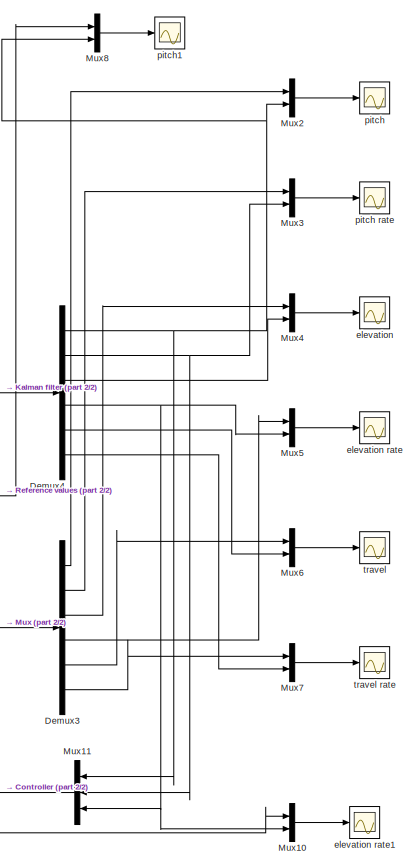
[diagram: root canvas - part 1/2, right side, full height]
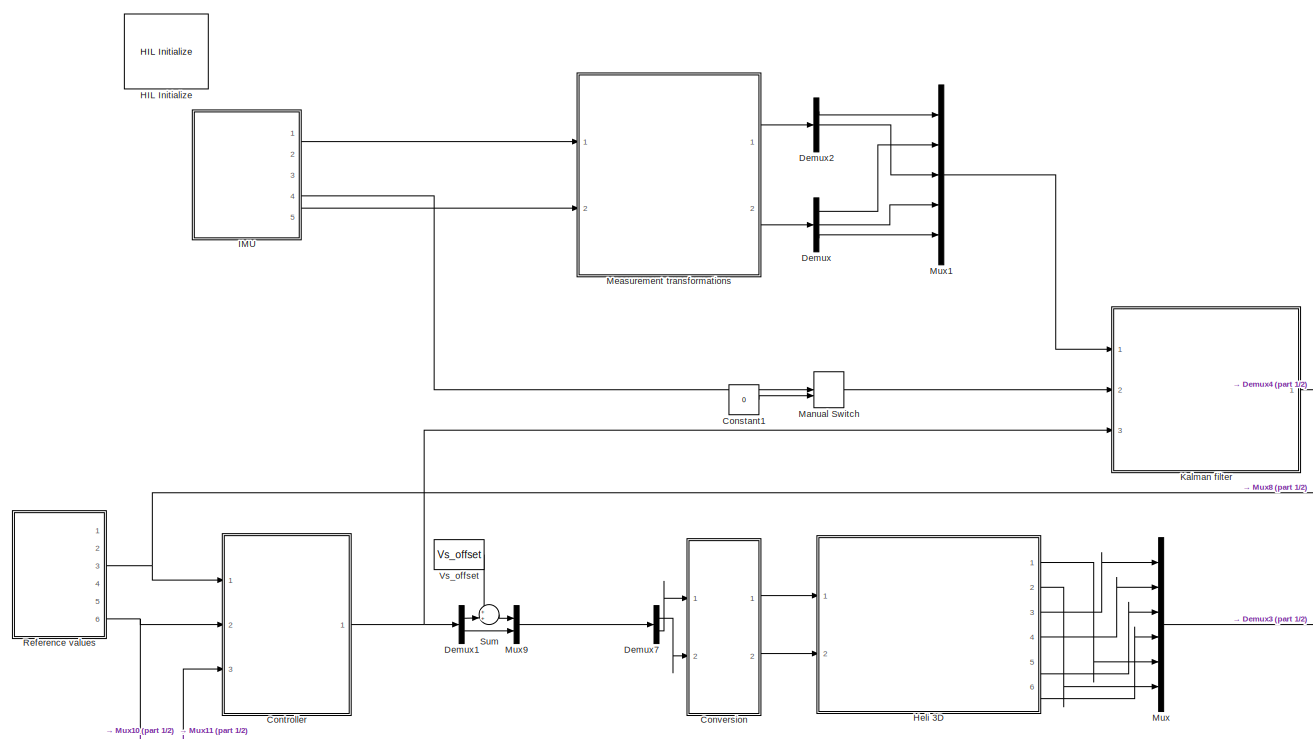
[diagram: root canvas - part 2/2, most of the canvas]
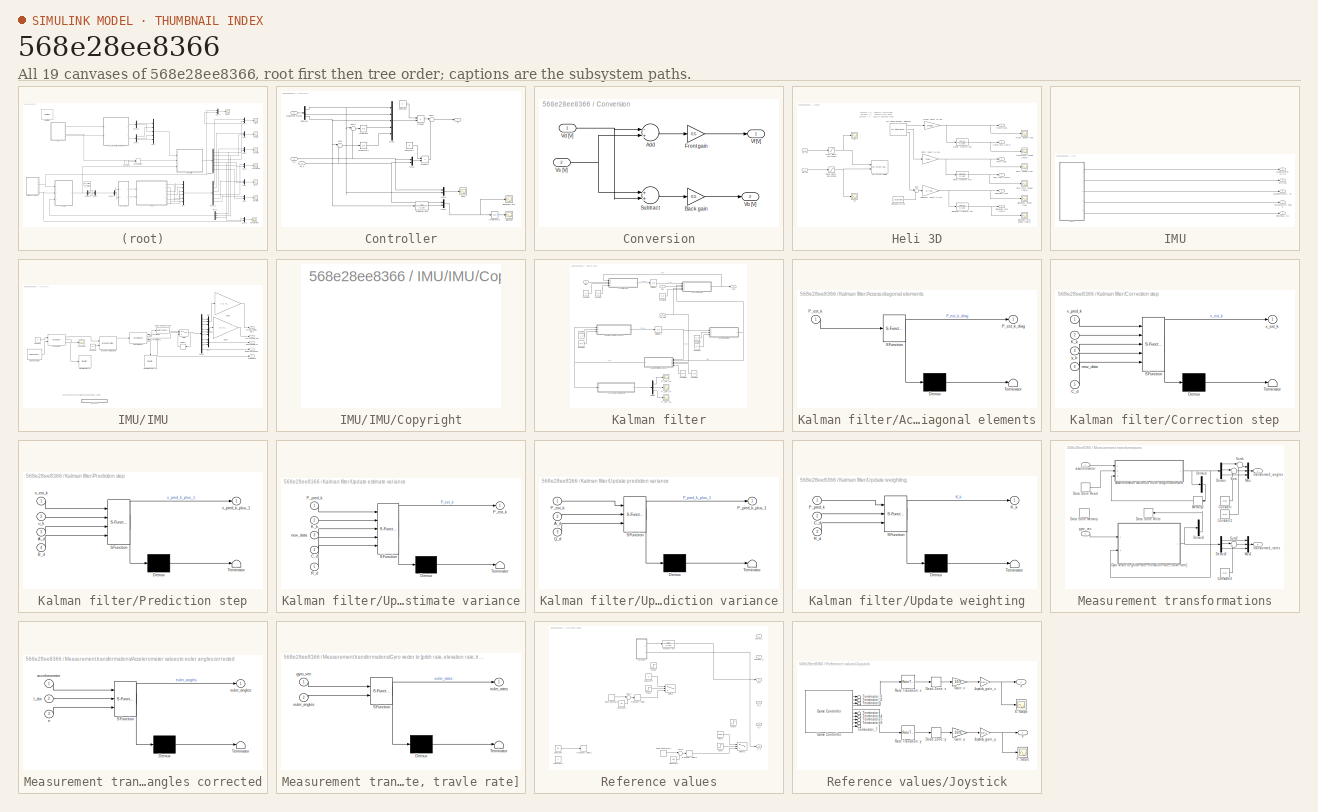
[diagram: thumbnail index - all 19 canvases of the model, root first then tree order]
MODEL slx_568e28ee8366
KIND model
CONFIG AbsTol = auto
CONFIG FixedStep = 0.002
CONFIG MaxStep = auto
CONFIG MinStep = auto
CONFIG PostLoadFcn = qc_set_target_type(getConfigSet(bdroot, 'QUARC Default Target Configuration'));
CONFIG RelTol = 1e-3
CONFIG SampleTimeConstraint = Unconstrained
CONFIG Solver = ode1
CONFIG SolverMode = Auto
CONFIG SolverName = ode1
CONFIG StartTime = 0.0
CONFIG StopTime = inf
BLOCK [Constant] Constant1
  Value = 0
BLOCK [SubSystem] Controller
  Ports = [3, 1]
  RequestExecContextInheritance = off
  Variant = off
BLOCK [Constant] Controller/Constant
  Value = K
BLOCK [Constant] Controller/Constant1
  Value = F
BLOCK [Demux] Controller/Demux1
  DisplayOption = bar
  Outputs = 3
  Ports = [1, 3]
BLOCK [Scope] Controller/Elevation
  Ports = [1]
  ScopeSpecificationString = Simulink.scopes.TimeScopeBlockCfg('CurrentConfiguration', extmgr.ConfigurationSet(extmgr.Configuration('Core','General UI',true),extmgr.Configuration('Core','Source UI',true),extmgr.Configuration('Sources','WiredSimulink',true,'DataLoggingVariableName','ScopeData2'),extmgr.Configuration('Visuals','Time Domain',true,'SerializedDisplays',{struct('MinYLimReal','-0.04275','MaxYLimReal','0.19496','YLab...<+1488ch>
BLOCK [Scope] Controller/Elevation rate
  Ports = [1]
  ScopeSpecificationString = Simulink.scopes.TimeScopeBlockCfg('CurrentConfiguration', extmgr.ConfigurationSet(extmgr.Configuration('Core','General UI',true),extmgr.Configuration('Core','Source UI',true),extmgr.Configuration('Sources','WiredSimulink',true,'DataLoggingVariableName','ScopeData1'),extmgr.Configuration('Visuals','Time Domain',true,'SerializedDisplays',{struct('MinYLimReal','-0.60029','MaxYLimReal','0.90314','YLab...<+1450ch>
BLOCK [Integrator] Controller/Integrator
  Ports = [1, 1]
BLOCK [Integrator] Controller/Integrator1
  Ports = [1, 1]
BLOCK [Integrator] Controller/Integrator2
  Ports = [1, 1]
BLOCK [Inport] Controller/Measured states
  IconDisplay = Port number
  Port = 3
BLOCK [Mux] Controller/Mux1
  DisplayOption = bar
  Inputs = 2
  Ports = [2, 1]
BLOCK [Mux] Controller/Mux2
  DisplayOption = bar
  Inputs = 5
  Ports = [5, 1]
BLOCK [Mux] Controller/Mux3
  DisplayOption = bar
  Inputs = 2
  Ports = [2, 1]
BLOCK [Mux] Controller/Mux4
  DisplayOption = bar
  Inputs = 2
  Ports = [2, 1]
BLOCK [Scope] Controller/Pitch
  Ports = [1]
  ScopeSpecificationString = Simulink.scopes.TimeScopeBlockCfg('CurrentConfiguration', extmgr.ConfigurationSet(extmgr.Configuration('Core','General UI',true),extmgr.Configuration('Core','Source UI',true),extmgr.Configuration('Sources','WiredSimulink',true,'DataLoggingVariableName','ScopeData1'),extmgr.Configuration('Visuals','Time Domain',true,'SerializedDisplays',{struct('MinYLimReal','-0.05269','MaxYLimReal','0.05852','YLab...<+1474ch>
BLOCK [Product] Controller/Product
  InputSameDT = off
  Multiplication = Matrix(*)
  OutDataTypeStr = Inherit: Inherit via internal rule
  Ports = [2, 1]
  RndMeth = Floor
  SaturateOnIntegerOverflow = off
BLOCK [Product] Controller/Product1
  InputSameDT = off
  Multiplication = Matrix(*)
  OutDataTypeStr = Inherit: Inherit via internal rule
  Ports = [2, 1]
  RndMeth = Floor
  SaturateOnIntegerOverflow = off
BLOCK [Sum] Controller/Sum
  IconShape = round
  InputSameDT = off
  Inputs = |+-
  OutDataTypeStr = Inherit: Inherit via internal rule
  Ports = [2, 1]
  SaturateOnIntegerOverflow = off
BLOCK [Sum] Controller/Sum1
  IconShape = round
  InputSameDT = off
  Inputs = |-+
  OutDataTypeStr = Inherit: Inherit via internal rule
  Ports = [2, 1]
  SaturateOnIntegerOverflow = off
BLOCK [Sum] Controller/Sum2
  IconShape = round
  InputSameDT = off
  Inputs = |+-
  OutDataTypeStr = Inherit: Inherit via internal rule
  Ports = [2, 1]
  SaturateOnIntegerOverflow = off
BLOCK [TransferFcn] Controller/Transfer Fcn
  Denominator = [1 10]
  Numerator = [10]
BLOCK [Inport] Controller/e*_c
  IconDisplay = Port number
  Port = 2
BLOCK [Inport] Controller/p_c
  IconDisplay = Port number
BLOCK [Outport] Controller/u
  IconDisplay = Port number
BLOCK [SubSystem] Conversion
  Ports = [2, 2]
  RequestExecContextInheritance = off
  Variant = off
BLOCK [Sum] Conversion/Add
  InputSameDT = off
  Inputs = -+
  OutDataTypeStr = Inherit: Inherit via internal rule
  Ports = [2, 1]
  SaturateOnIntegerOverflow = off
BLOCK [Gain] Conversion/Back gain
  Gain = 0.5
  OutDataTypeStr = Inherit: Inherit via internal rule
  ParamDataTypeStr = Inherit: Inherit via internal rule
  SaturateOnIntegerOverflow = off
BLOCK [Gain] Conversion/Front gain
  Gain = 0.5
  OutDataTypeStr = Inherit: Inherit via internal rule
  ParamDataTypeStr = Inherit: Inherit via internal rule
  SaturateOnIntegerOverflow = off
BLOCK [Sum] Conversion/Subtract
  InputSameDT = off
  OutDataTypeStr = Inherit: Inherit via internal rule
  Ports = [2, 1]
  SaturateOnIntegerOverflow = off
BLOCK [Outport] Conversion/Vb [V]
  IconDisplay = Port number
  Port = 2
BLOCK [Inport] Conversion/Vd [V]
  IconDisplay = Port number
BLOCK [Outport] Conversion/Vf [V]
  IconDisplay = Port number
BLOCK [Inport] Conversion/Vs [V]
  IconDisplay = Port number
  Port = 2
BLOCK [Demux] Demux
  DisplayOption = bar
  Outputs = 3
  Ports = [1, 3]
BLOCK [Demux] Demux1
  DisplayOption = bar
  Outputs = 2
  Ports = [1, 2]
BLOCK [Demux] Demux2
  DisplayOption = bar
  Outputs = 3
  Ports = [1, 3]
BLOCK [Demux] Demux3
  DisplayOption = bar
  Outputs = 6
  Ports = [1, 6]
BLOCK [Demux] Demux4
  DisplayOption = bar
  Outputs = 6
  Ports = [1, 6]
BLOCK [Demux] Demux7
  DisplayOption = bar
  Outputs = 2
  Ports = [1, 2]
BLOCK [Reference] HIL Initialize  REF=quarc_library/Data Acquisition/Generic/Configuration/HIL Initialize
  AttributesFormatString = %<object_name> (%<board_type>-%<board_number>)
  Ports = []
  Priority = -99
  SourceBlock = quarc_library/Data Acquisition/Generic/Configuration/HIL Initialize
  SourceType = HIL Initialize
  UserDataPersistent = on
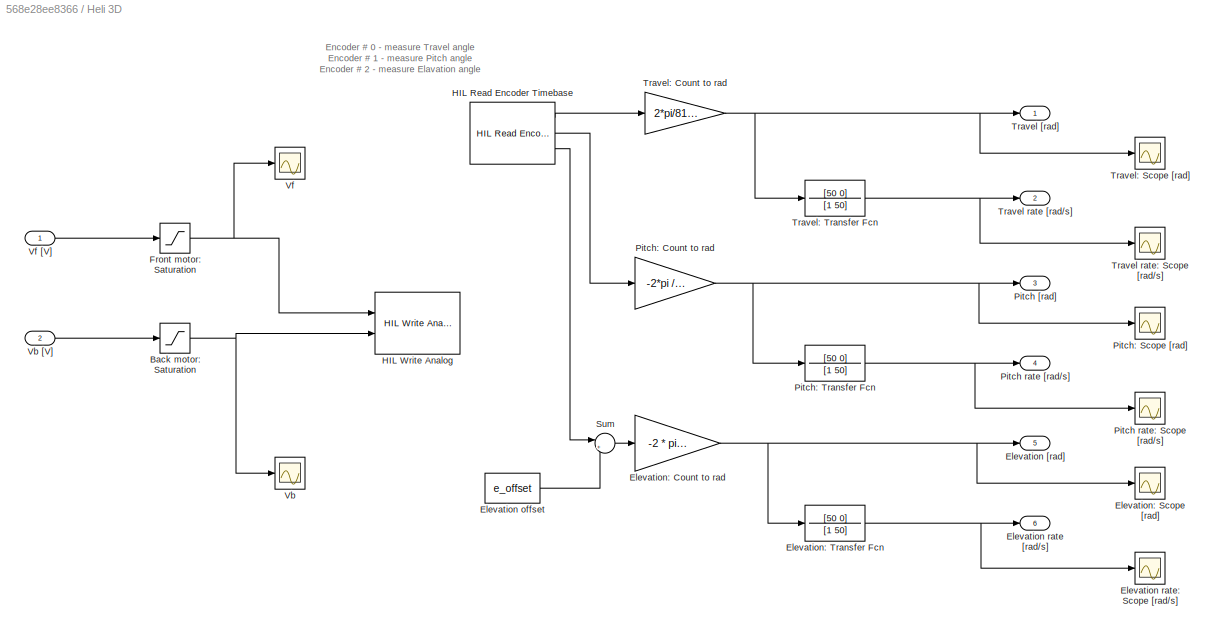
BLOCK [SubSystem] Heli 3D
  Ports = [2, 6]
  RequestExecContextInheritance = off
  Variant = off
BLOCK [Saturate] Heli 3D/Back motor: Saturation
  InputPortMap = u0
  LowerLimit = -5
  Ports = [1, 1]
  UpperLimit = 5
BLOCK [Outport] Heli 3D/Elevation [rad]
  IconDisplay = Port number
  Port = 5
BLOCK [Constant] Heli 3D/Elevation offset
  Value = e_offset
BLOCK [Outport] Heli 3D/Elevation rate [rad//s]
  IconDisplay = Port number
  Port = 6
BLOCK [Scope] Heli 3D/Elevation rate: Scope [rad//s]
  Ports = [1]
  ScopeSpecificationString = Simulink.scopes.TimeScopeBlockCfg('CurrentConfiguration', extmgr.ConfigurationSet(extmgr.Configuration('Core','General UI',true),extmgr.Configuration('Core','Source UI',true),extmgr.Configuration('Sources','WiredSimulink',true,'DataLoggingVariableName','ScopeData13','DataLoggingSaveFormat','StructureWithTime','DataLoggingLimitDataPoints',true,'DataLoggingDecimation','1','DataLoggingDecimateData',t...<+1740ch>
BLOCK [Gain] Heli 3D/Elevation: Count to rad
  Gain = -2 * pi /4096
  OutDataTypeStr = Inherit: Inherit via internal rule
  ParamDataTypeStr = Inherit: Inherit via internal rule
  SaturateOnIntegerOverflow = off
BLOCK [Scope] Heli 3D/Elevation: Scope [rad]
  Ports = [1]
  ScopeSpecificationString = Simulink.scopes.TimeScopeBlockCfg('CurrentConfiguration', extmgr.ConfigurationSet(extmgr.Configuration('Core','General UI',true),extmgr.Configuration('Core','Source UI',true),extmgr.Configuration('Sources','WiredSimulink',true,'DataLoggingVariableName','ScopeData12','DataLoggingSaveFormat','StructureWithTime','DataLoggingLimitDataPoints',true,'DataLoggingDecimation','1','DataLoggingDecimateData',t...<+1766ch>
BLOCK [TransferFcn] Heli 3D/Elevation: Transfer Fcn
  Denominator = [1 50]
  Numerator = [50 0]
BLOCK [Saturate] Heli 3D/Front motor: Saturation
  InputPortMap = u0
  LowerLimit = -5
  Ports = [1, 1]
  UpperLimit = 5
BLOCK [Reference] Heli 3D/HIL Read Encoder Timebase  REF=quarc_library/Data Acquisition/Generic/Timebases/HIL Read Encoder
Timebase
  AttributesFormatString = (%<object_name>)
  Ports = [0, 3]
  SourceBlock = quarc_library/Data Acquisition/Generic/Timebases/HIL Read Encoder\nTimebase
  SourceType = HIL Read Encoder Timebase
  UserDataPersistent = on
BLOCK [Reference] Heli 3D/HIL Write Analog  REF=quarc_library/Data Acquisition/Generic/Immediate I//O/HIL Write Analog
  AttributesFormatString = (%<object_name>)
  Ports = [2]
  SourceBlock = quarc_library/Data Acquisition/Generic/Immediate I//O/HIL Write Analog
  SourceType = HIL Write Analog
  UserDataPersistent = on
BLOCK [Outport] Heli 3D/Pitch [rad]
  IconDisplay = Port number
  Port = 3
BLOCK [Outport] Heli 3D/Pitch rate [rad//s]
  IconDisplay = Port number
  Port = 4
BLOCK [Scope] Heli 3D/Pitch rate: Scope [rad//s]
  Ports = [1]
  ScopeSpecificationString = Simulink.scopes.TimeScopeBlockCfg('CurrentConfiguration', extmgr.ConfigurationSet(extmgr.Configuration('Core','General UI',true),extmgr.Configuration('Core','Source UI',true),extmgr.Configuration('Sources','WiredSimulink',true,'DataLoggingVariableName','ScopeData11','DataLoggingSaveFormat','StructureWithTime','DataLoggingLimitDataPoints',true,'DataLoggingDecimation','1','DataLoggingDecimateData',t...<+1672ch>
BLOCK [Gain] Heli 3D/Pitch: Count to rad
  Gain = -2*pi /4096
  OutDataTypeStr = Inherit: Inherit via internal rule
  ParamDataTypeStr = Inherit: Inherit via internal rule
  SaturateOnIntegerOverflow = off
BLOCK [Scope] Heli 3D/Pitch: Scope [rad]
  Ports = [1]
  ScopeSpecificationString = Simulink.scopes.TimeScopeBlockCfg('CurrentConfiguration', extmgr.ConfigurationSet(extmgr.Configuration('Core','General UI',true),extmgr.Configuration('Core','Source UI',true),extmgr.Configuration('Sources','WiredSimulink',true,'DataLoggingVariableName','ScopeData10','DataLoggingSaveFormat','StructureWithTime','DataLoggingLimitDataPoints',true,'DataLoggingDecimation','1','DataLoggingDecimateData',t...<+1671ch>
BLOCK [TransferFcn] Heli 3D/Pitch: Transfer Fcn
  Denominator = [1 50]
  Numerator = [50 0]
BLOCK [Sum] Heli 3D/Sum
  IconShape = round
  InputSameDT = off
  Inputs = |+-
  OutDataTypeStr = Inherit: Inherit via internal rule
  Ports = [2, 1]
  SaturateOnIntegerOverflow = off
BLOCK [Outport] Heli 3D/Travel [rad]
  IconDisplay = Port number
BLOCK [Outport] Heli 3D/Travel rate [rad//s]
  IconDisplay = Port number
  Port = 2
BLOCK [Scope] Heli 3D/Travel rate: Scope [rad//s]
  Ports = [1]
  ScopeSpecificationString = Simulink.scopes.TimeScopeBlockCfg('CurrentConfiguration', extmgr.ConfigurationSet(extmgr.Configuration('Core','General UI',true),extmgr.Configuration('Core','Source UI',true),extmgr.Configuration('Sources','WiredSimulink',true,'DataLoggingVariableName','ScopeData9','DataLoggingSaveFormat','StructureWithTime','DataLoggingLimitDataPoints',true,'DataLoggingDecimation','1','DataLoggingDecimateData',tr...<+1652ch>
BLOCK [Gain] Heli 3D/Travel: Count to rad
  Gain = 2*pi/8192
  OutDataTypeStr = Inherit: Inherit via internal rule
  ParamDataTypeStr = Inherit: Inherit via internal rule
  SaturateOnIntegerOverflow = off
BLOCK [Scope] Heli 3D/Travel: Scope [rad]
  Ports = [1]
  ScopeSpecificationString = Simulink.scopes.TimeScopeBlockCfg('CurrentConfiguration', extmgr.ConfigurationSet(extmgr.Configuration('Core','General UI',true),extmgr.Configuration('Core','Source UI',true),extmgr.Configuration('Sources','WiredSimulink',true,'DataLoggingVariableName','ScopeData8','DataLoggingSaveFormat','StructureWithTime','DataLoggingLimitDataPoints',true,'DataLoggingDecimation','1','DataLoggingDecimateData',tr...<+1672ch>
BLOCK [TransferFcn] Heli 3D/Travel: Transfer Fcn
  Denominator = [1 50]
  Numerator = [50 0]
BLOCK [Scope] Heli 3D/Vb
  Ports = [1]
  ScopeSpecificationString = Simulink.scopes.TimeScopeBlockCfg('CurrentConfiguration', extmgr.ConfigurationSet(extmgr.Configuration('Core','General UI',true),extmgr.Configuration('Core','Source UI',true),extmgr.Configuration('Sources','WiredSimulink',true,'DataLoggingVariableName','ScopeData2'),extmgr.Configuration('Visuals','Time Domain',true,'SerializedDisplays',{struct('MinYLimReal','3.82927','MaxYLimReal','4.07927','YLabe...<+1456ch>
BLOCK [Inport] Heli 3D/Vb [V]
  IconDisplay = Port number
  Port = 2
BLOCK [Scope] Heli 3D/Vf
  Ports = [1]
  ScopeSpecificationString = Simulink.scopes.TimeScopeBlockCfg('CurrentConfiguration', extmgr.ConfigurationSet(extmgr.Configuration('Core','General UI',true),extmgr.Configuration('Core','Source UI',true),extmgr.Configuration('Sources','WiredSimulink',true,'DataLoggingVariableName','ScopeData1'),extmgr.Configuration('Visuals','Time Domain',true,'SerializedDisplays',{struct('MinYLimReal','-0.625','MaxYLimReal','5.625','YLabelRe...<+1467ch>
BLOCK [Inport] Heli 3D/Vf [V]
  IconDisplay = Port number
BLOCK [SubSystem] IMU
  Ports = [0, 5]
  RequestExecContextInheritance = off
  Variant = off
BLOCK [Outport] IMU/Accelerometer, m//s^2
  IconDisplay = Port number
BLOCK [SubSystem] IMU/IMU
  Ports = [0, 5]
  RequestExecContextInheritance = off
  Variant = off
BLOCK [Scope] IMU/IMU/Connected
  Ports = [1]
  ScopeSpecificationString = Simulink.scopes.TimeScopeBlockCfg('CurrentConfiguration', extmgr.ConfigurationSet(extmgr.Configuration('Core','General UI',true),extmgr.Configuration('Core','Source UI',true),extmgr.Configuration('Sources','WiredSimulink',true,'DataLoggingSaveFormat','StructureWithTime','DataLoggingLimitDataPoints',true,'DataLoggingDecimation','1','DataLoggingDecimateData',true,'DataLoggingVariableName','ScopeData...<+909ch>
BLOCK [Constant] IMU/IMU/Constant
  Value = 0
BLOCK [Constant] IMU/IMU/Constant1
  Value = 65
BLOCK [SubSystem] IMU/IMU/<copyright redacted>
  OpenFcn = web('http://www.quanser.com/');
  Permissions = NoReadOrWrite
  PermitHierarchicalResolution = None
  Ports = []
  RequestExecContextInheritance = off
  Variant = off
BLOCK [DataTypeConversion] IMU/IMU/Data Type Conversion
  OutDataTypeStr = double
  RndMeth = Floor
  SaturateOnIntegerOverflow = off
BLOCK [Demux] IMU/IMU/Demux
  DisplayOption = bar
  Outputs = 10
  Ports = [1, 10]
BLOCK [Gain] IMU/IMU/Gain1
  Gain = [ 0, 0, 1; 0, 1, 0; -1, 0, 0]
  Multiplication = Matrix(K*u) (u vector)
  OutDataTypeStr = Inherit: Inherit via internal rule
  ParamDataTypeStr = Inherit: Inherit via internal rule
  SaturateOnIntegerOverflow = off
BLOCK [Gain] IMU/IMU/Gain2
  Gain = [ 0, 0, 1; 0, 1, 0; -1, 0, 0]
  Multiplication = Matrix(K*u) (u vector)
  OutDataTypeStr = Inherit: Inherit via internal rule
  ParamDataTypeStr = Inherit: Inherit via internal rule
  SaturateOnIntegerOverflow = off
BLOCK [Memory] IMU/IMU/Memory
  X0 = [0 0 0 0 0 0 0 0 0 0]
BLOCK [Mux] IMU/IMU/Mux
  DisplayOption = bar
  Inputs = 3
  Ports = [3, 1]
BLOCK [Mux] IMU/IMU/Mux1
  DisplayOption = bar
  Inputs = 3
  Ports = [3, 1]
BLOCK [Mux] IMU/IMU/Mux2
  DisplayOption = bar
  Inputs = 3
  Ports = [3, 1]
BLOCK [Outport] IMU/IMU/New data, 0//1
  IconDisplay = Port number
  Port = 5
BLOCK [Reference] IMU/IMU/Stop with Call Error  REF=quarc_library/Sinks/Error Handling/Stop with Error
  Ports = [1]
  SourceBlock = quarc_library/Sinks/Error Handling/Stop with Error
  SourceType = Stop with Error
BLOCK [Reference] IMU/IMU/Stop with Read Error  REF=quarc_library/Sinks/Error Handling/Stop with Error
  Ports = [1]
  SourceBlock = quarc_library/Sinks/Error Handling/Stop with Error
  SourceType = Stop with Error
BLOCK [Reference] IMU/IMU/Stream Call1  REF=quarc_library/Communications/Intermediate/Stream Call
  Ports = [2, 3]
  SourceBlock = quarc_library/Communications/Intermediate/Stream Call
  SourceType = Stream Call
BLOCK [Reference] IMU/IMU/Stream Formatted Write  REF=quarc_library/Communications/Intermediate/Stream Formatted
Write
  Ports = [2, 5]
  SourceBlock = quarc_library/Communications/Intermediate/Stream Formatted\nWrite
  SourceType = Stream Formatted Write
BLOCK [Reference] IMU/IMU/Stream Read1  REF=quarc_library/Communications/Intermediate/Stream Read
  Ports = [1, 5]
  SourceBlock = quarc_library/Communications/Intermediate/Stream Read
  SourceType = Stream Read
BLOCK [Reference] IMU/IMU/String Constant  REF=quarc_library/Strings/String Constant
  AttributesFormatString = "serial://IMU:12?baud=115200,word=8,parity=none,stop=1"
  Ports = [0, 1]
  SourceBlock = quarc_library/Strings/String Constant
  SourceType = String Constant
BLOCK [Switch] IMU/IMU/Switch
  Criteria = u2 > Threshold
  InputSameDT = off
  SaturateOnIntegerOverflow = off
BLOCK [Terminator] IMU/IMU/Terminator
BLOCK [Terminator] IMU/IMU/Terminator1
BLOCK [Outport] IMU/IMU/accelerometer, m//s^2
  IconDisplay = Port number
BLOCK [Outport] IMU/IMU/gyroscope, rad//s
  IconDisplay = Port number
  Port = 2
BLOCK [Outport] IMU/IMU/magnetometer, uT
  IconDisplay = Port number
  Port = 3
BLOCK [Outport] IMU/IMU/temperature, deg C
  IconDisplay = Port number
  Port = 4
BLOCK [Outport] IMU/Magnetometer, uT
  IconDisplay = Port number
  Port = 2
BLOCK [Outport] IMU/New data, 0//1
  IconDisplay = Port number
  Port = 4
BLOCK [Outport] IMU/Temperature, deg C
  IconDisplay = Port number
  Port = 3
BLOCK [Outport] IMU/gyro_vec 
  IconDisplay = Port number
  Port = 5
BLOCK [SubSystem] Kalman filter
  Ports = [3, 1]
  RequestExecContextInheritance = off
  Variant = off
BLOCK [SubSystem] Kalman filter/Access diagonal elements
  ErrorFcn = Stateflow.Translate.translate
  PermitHierarchicalResolution = ExplicitOnly
  Ports = [1, 1]
  RequestExecContextInheritance = off
  SFBlockType = MATLAB Function
  TreatAsAtomicUnit = on
  Variant = off
BLOCK [Demux] Kalman filter/Access diagonal elements/ Demux 
  Outputs = 1
  Ports = [1, 1]
BLOCK [S-Function] Kalman filter/Access diagonal elements/ SFunction 
  EnableBusSupport = on
  FunctionName = sf_sfun
  PortCounts = [1 2]
  Ports = [1, 2]
  SFunctionDeploymentMode = off
  Tag = Stateflow S-Function heli_q8 8
BLOCK [Terminator] Kalman filter/Access diagonal elements/ Terminator 
BLOCK [Inport] Kalman filter/Access diagonal elements/P_est_k
  IconDisplay = Port number
BLOCK [Outport] Kalman filter/Access diagonal elements/P_est_k_diag
  IconDisplay = Port number
BLOCK [Constant] Kalman filter/Constant
  Value = A_d
BLOCK [Constant] Kalman filter/Constant1
  Value = Q_d
BLOCK [Constant] Kalman filter/Constant2
  Value = C_d
BLOCK [Constant] Kalman filter/Constant3
  Value = C_d
BLOCK [Constant] Kalman filter/Constant4
  Value = R_d
BLOCK [Constant] Kalman filter/Constant5
  Value = C_d
BLOCK [Constant] Kalman filter/Constant6
  Value = A_d
BLOCK [Constant] Kalman filter/Constant7
  Value = B_d
BLOCK [Constant] Kalman filter/Constant8
  Value = R_d
BLOCK [SubSystem] Kalman filter/Correction step
  ErrorFcn = Stateflow.Translate.translate
  PermitHierarchicalResolution = ExplicitOnly
  Ports = [5, 1]
  RequestExecContextInheritance = off
  SFBlockType = MATLAB Function
  TreatAsAtomicUnit = on
  Variant = off
BLOCK [Demux] Kalman filter/Correction step/ Demux 
  DisplayOption = bar
  Outputs = 1
  Ports = [1, 1]
BLOCK [S-Function] Kalman filter/Correction step/ SFunction 
  EnableBusSupport = on
  FunctionName = sf_sfun
  PortCounts = [5 2]
  Ports = [5, 2]
  SFunctionDeploymentMode = off
  Tag = Stateflow S-Function heli_q8 1
BLOCK [Terminator] Kalman filter/Correction step/ Terminator 
BLOCK [Inport] Kalman filter/Correction step/C_d
  IconDisplay = Port number
  Port = 5
BLOCK [Inport] Kalman filter/Correction step/K_k
  IconDisplay = Port number
  Port = 2
BLOCK [Inport] Kalman filter/Correction step/new_data
  IconDisplay = Port number
  Port = 4
BLOCK [Outport] Kalman filter/Correction step/x_est_k
  IconDisplay = Port number
BLOCK [Inport] Kalman filter/Correction step/x_pred_k
  IconDisplay = Port number
BLOCK [Inport] Kalman filter/Correction step/y_k
  IconDisplay = Port number
  Port = 3
BLOCK [Demux] Kalman filter/Demux
  DisplayOption = bar
  Outputs = 3
  Ports = [1, 3]
BLOCK [Scope] Kalman filter/P^_11 P^_22
  Ports = [1]
  ScopeSpecificationString = Simulink.scopes.TimeScopeBlockCfg('CurrentConfiguration', extmgr.ConfigurationSet(extmgr.Configuration('Core','General UI',true),extmgr.Configuration('Core','Source UI',true),extmgr.Configuration('Sources','WiredSimulink',true,'DataLoggingVariableName','ScopeData2'),extmgr.Configuration('Visuals','Time Domain',true,'SerializedDisplays',{struct('MinYLimReal','0.000014','MaxYLimReal','0.000078','YLa...<+1459ch>
BLOCK [Scope] Kalman filter/P^_33 P^_44
  Ports = [1]
  ScopeSpecificationString = Simulink.scopes.TimeScopeBlockCfg('CurrentConfiguration', extmgr.ConfigurationSet(extmgr.Configuration('Core','General UI',true),extmgr.Configuration('Core','Source UI',true),extmgr.Configuration('Sources','WiredSimulink',true,'DataLoggingVariableName','ScopeData3'),extmgr.Configuration('Visuals','Time Domain',true,'SerializedDisplays',{struct('MinYLimReal','-0.00001','MaxYLimReal','0.00009','YLab...<+1453ch>
BLOCK [Scope] Kalman filter/P^_55 P^_66
  Ports = [1]
  ScopeSpecificationString = Simulink.scopes.TimeScopeBlockCfg('CurrentConfiguration', extmgr.ConfigurationSet(extmgr.Configuration('Core','General UI',true),extmgr.Configuration('Core','Source UI',true),extmgr.Configuration('Sources','WiredSimulink',true,'DataLoggingVariableName','ScopeData4'),extmgr.Configuration('Visuals','Time Domain',true,'SerializedDisplays',{struct('MinYLimReal','-0.07905','MaxYLimReal','2.3293','YLabe...<+1449ch>
BLOCK [SubSystem] Kalman filter/Prediction step
  ErrorFcn = Stateflow.Translate.translate
  PermitHierarchicalResolution = ExplicitOnly
  Ports = [4, 1]
  RequestExecContextInheritance = off
  SFBlockType = MATLAB Function
  TreatAsAtomicUnit = on
  Variant = off
BLOCK [Demux] Kalman filter/Prediction step/ Demux 
  DisplayOption = bar
  Outputs = 1
  Ports = [1, 1]
BLOCK [S-Function] Kalman filter/Prediction step/ SFunction 
  EnableBusSupport = on
  FunctionName = sf_sfun
  PortCounts = [4 2]
  Ports = [4, 2]
  SFunctionDeploymentMode = off
  Tag = Stateflow S-Function heli_q8 4
BLOCK [Terminator] Kalman filter/Prediction step/ Terminator 
BLOCK [Inport] Kalman filter/Prediction step/A_d
  IconDisplay = Port number
  Port = 3
BLOCK [Inport] Kalman filter/Prediction step/B_d
  IconDisplay = Port number
  Port = 4
BLOCK [Inport] Kalman filter/Prediction step/u_k
  IconDisplay = Port number
  Port = 2
BLOCK [Inport] Kalman filter/Prediction step/x_est_k
  IconDisplay = Port number
BLOCK [Outport] Kalman filter/Prediction step/x_pred_k_plus_1
  IconDisplay = Port number
BLOCK [UnitDelay] Kalman filter/Unit Delay
  InitialCondition = [0; 0; -0.4943; 0; 0; 0;]
  InputProcessing = Elements as channels (sample based)
  SampleTime = -1
BLOCK [UnitDelay] Kalman filter/Unit Delay1
  InputProcessing = Elements as channels (sample based)
  SampleTime = -1
BLOCK [SubSystem] Kalman filter/Update estimate variance
  ErrorFcn = Stateflow.Translate.translate
  PermitHierarchicalResolution = ExplicitOnly
  Ports = [5, 1]
  RequestExecContextInheritance = off
  SFBlockType = MATLAB Function
  TreatAsAtomicUnit = on
  Variant = off
BLOCK [Demux] Kalman filter/Update estimate variance/ Demux 
  DisplayOption = bar
  Outputs = 1
  Ports = [1, 1]
BLOCK [S-Function] Kalman filter/Update estimate variance/ SFunction 
  EnableBusSupport = on
  FunctionName = sf_sfun
  PortCounts = [5 2]
  Ports = [5, 2]
  SFunctionDeploymentMode = off
  Tag = Stateflow S-Function heli_q8 5
BLOCK [Terminator] Kalman filter/Update estimate variance/ Terminator 
BLOCK [Inport] Kalman filter/Update estimate variance/C_d
  IconDisplay = Port number
  Port = 4
BLOCK [Inport] Kalman filter/Update estimate variance/K_k
  IconDisplay = Port number
  Port = 2
BLOCK [Outport] Kalman filter/Update estimate variance/P_est_k
  IconDisplay = Port number
BLOCK [Inport] Kalman filter/Update estimate variance/P_pred_k
  IconDisplay = Port number
BLOCK [Inport] Kalman filter/Update estimate variance/R_d
  IconDisplay = Port number
  Port = 5
BLOCK [Inport] Kalman filter/Update estimate variance/new_data
  IconDisplay = Port number
  Port = 3
BLOCK [SubSystem] Kalman filter/Update prediction variance
  ErrorFcn = Stateflow.Translate.translate
  PermitHierarchicalResolution = ExplicitOnly
  Ports = [3, 1]
  RequestExecContextInheritance = off
  SFBlockType = MATLAB Function
  TreatAsAtomicUnit = on
  Variant = off
BLOCK [Demux] Kalman filter/Update prediction variance/ Demux 
  DisplayOption = bar
  Outputs = 1
  Ports = [1, 1]
BLOCK [S-Function] Kalman filter/Update prediction variance/ SFunction 
  EnableBusSupport = on
  FunctionName = sf_sfun
  PortCounts = [3 2]
  Ports = [3, 2]
  SFunctionDeploymentMode = off
  Tag = Stateflow S-Function heli_q8 6
BLOCK [Terminator] Kalman filter/Update prediction variance/ Terminator 
BLOCK [Inport] Kalman filter/Update prediction variance/A_d
  IconDisplay = Port number
  Port = 2
BLOCK [Inport] Kalman filter/Update prediction variance/P_est_k
  IconDisplay = Port number
BLOCK [Outport] Kalman filter/Update prediction variance/P_pred_k_plus_1
  IconDisplay = Port number
BLOCK [Inport] Kalman filter/Update prediction variance/Q_d
  IconDisplay = Port number
  Port = 3
BLOCK [SubSystem] Kalman filter/Update weighting
  ErrorFcn = Stateflow.Translate.translate
  PermitHierarchicalResolution = ExplicitOnly
  Ports = [3, 1]
  RequestExecContextInheritance = off
  SFBlockType = MATLAB Function
  TreatAsAtomicUnit = on
  Variant = off
BLOCK [Demux] Kalman filter/Update weighting/ Demux 
  DisplayOption = bar
  Outputs = 1
  Ports = [1, 1]
BLOCK [S-Function] Kalman filter/Update weighting/ SFunction 
  EnableBusSupport = on
  FunctionName = sf_sfun
  PortCounts = [3 2]
  Ports = [3, 2]
  SFunctionDeploymentMode = off
  Tag = Stateflow S-Function heli_q8 7
BLOCK [Terminator] Kalman filter/Update weighting/ Terminator 
BLOCK [Inport] Kalman filter/Update weighting/C_d
  IconDisplay = Port number
  Port = 2
BLOCK [Outport] Kalman filter/Update weighting/K_k
  IconDisplay = Port number
BLOCK [Inport] Kalman filter/Update weighting/P_pred_k
  IconDisplay = Port number
BLOCK [Inport] Kalman filter/Update weighting/R_d
  IconDisplay = Port number
  Port = 3
BLOCK [Inport] Kalman filter/new_data
  IconDisplay = Port number
  Port = 2
BLOCK [Inport] Kalman filter/u[k]
  IconDisplay = Port number
  Port = 3
BLOCK [Outport] Kalman filter/x^[k]
  IconDisplay = Port number
BLOCK [Inport] Kalman filter/y[k]
  IconDisplay = Port number
BLOCK [ManualSwitch] Manual Switch
BLOCK [SubSystem] Measurement transformations
  Ports = [2, 2]
  RequestExecContextInheritance = off
  Variant = off
BLOCK [SubSystem] Measurement transformations/Accelerometer values to euler angles corrected
  ErrorFcn = Stateflow.Translate.translate
  PermitHierarchicalResolution = ExplicitOnly
  Ports = [3, 1]
  RequestExecContextInheritance = off
  SFBlockType = MATLAB Function
  TreatAsAtomicUnit = on
  Variant = off
BLOCK [Demux] Measurement transformations/Accelerometer values to euler angles corrected/ Demux 
  Outputs = 1
  Ports = [1, 1]
BLOCK [S-Function] Measurement transformations/Accelerometer values to euler angles corrected/ SFunction 
  EnableBusSupport = on
  FunctionName = sf_sfun
  PortCounts = [3 2]
  Ports = [3, 2]
  SFunctionDeploymentMode = off
  Tag = Stateflow S-Function heli_q8 3
BLOCK [Terminator] Measurement transformations/Accelerometer values to euler angles corrected/ Terminator 
BLOCK [Inport] Measurement transformations/Accelerometer values to euler angles corrected/accelerometer
  IconDisplay = Port number
BLOCK [Inport] Measurement transformations/Accelerometer values to euler angles corrected/e
  IconDisplay = Port number
  Port = 3
BLOCK [Outport] Measurement transformations/Accelerometer values to euler angles corrected/euler_angles
  IconDisplay = Port number
BLOCK [Inport] Measurement transformations/Accelerometer values to euler angles corrected/l_dot
  IconDisplay = Port number
  Port = 2
BLOCK [Constant] Measurement transformations/Constant
  Value = 0.06
BLOCK [Constant] Measurement transformations/Constant1
  Value = 0.01
BLOCK [Constant] Measurement transformations/Constant2
  Value = 0.01
BLOCK [DataStoreMemory] Measurement transformations/Data Store Memory
  DataStoreName = l_dot
  ReadBeforeWriteMsg = warning
  WriteAfterReadMsg = warning
  WriteAfterWriteMsg = warning
BLOCK [DataStoreRead] Measurement transformations/Data Store Read
  DataStoreName = l_dot
  Ports = [0, 1]
BLOCK [DataStoreWrite] Measurement transformations/Data Store Write
  DataStoreName = l_dot
  Ports = [1]
BLOCK [Demux] Measurement transformations/Demux
  DisplayOption = bar
  Outputs = 3
  Ports = [1, 3]
BLOCK [Demux] Measurement transformations/Demux1
  DisplayOption = bar
  Outputs = 3
  Ports = [1, 3]
BLOCK [Demux] Measurement transformations/Demux2
  DisplayOption = bar
  Outputs = 3
  Ports = [1, 3]
BLOCK [Demux] Measurement transformations/Demux3
  DisplayOption = bar
  Outputs = 3
  Ports = [1, 3]
BLOCK [SubSystem] Measurement transformations/Gyro vector to [pitch rate, elevation rate, travle rate]
  ErrorFcn = Stateflow.Translate.translate
  PermitHierarchicalResolution = ExplicitOnly
  Ports = [2, 1]
  RequestExecContextInheritance = off
  SFBlockType = MATLAB Function
  TreatAsAtomicUnit = on
  Variant = off
BLOCK [Demux] Measurement transformations/Gyro vector to [pitch rate, elevation rate, travle rate]/ Demux 
  Outputs = 1
  Ports = [1, 1]
BLOCK [S-Function] Measurement transformations/Gyro vector to [pitch rate, elevation rate, travle rate]/ SFunction 
  EnableBusSupport = on
  FunctionName = sf_sfun
  PortCounts = [2 2]
  Ports = [2, 2]
  SFunctionDeploymentMode = off
  Tag = Stateflow S-Function heli_q8 2
BLOCK [Terminator] Measurement transformations/Gyro vector to [pitch rate, elevation rate, travle rate]/ Terminator 
BLOCK [Inport] Measurement transformations/Gyro vector to [pitch rate, elevation rate, travle rate]/euler_angles
  IconDisplay = Port number
  Port = 2
BLOCK [Outport] Measurement transformations/Gyro vector to [pitch rate, elevation rate, travle rate]/euler_rates
  IconDisplay = Port number
BLOCK [Inport] Measurement transformations/Gyro vector to [pitch rate, elevation rate, travle rate]/gyro_vec
  IconDisplay = Port number
BLOCK [Memory] Measurement transformations/Memory2
BLOCK [Mux] Measurement transformations/Mux
  DisplayOption = bar
  Inputs = 3
  Ports = [3, 1]
BLOCK [Mux] Measurement transformations/Mux1
  DisplayOption = bar
  Inputs = 3
  Ports = [3, 1]
BLOCK [Sum] Measurement transformations/Sum
  IconShape = round
  InputSameDT = off
  Inputs = |++
  OutDataTypeStr = Inherit: Inherit via internal rule
  Ports = [2, 1]
  SaturateOnIntegerOverflow = off
BLOCK [Sum] Measurement transformations/Sum1
  IconShape = round
  InputSameDT = off
  Inputs = |++
  OutDataTypeStr = Inherit: Inherit via internal rule
  Ports = [2, 1]
  SaturateOnIntegerOverflow = off
BLOCK [Sum] Measurement transformations/Sum2
  IconShape = round
  InputSameDT = off
  Inputs = |+-
  OutDataTypeStr = Inherit: Inherit via internal rule
  Ports = [2, 1]
  SaturateOnIntegerOverflow = off
BLOCK [Inport] Measurement transformations/accelerometer
  IconDisplay = Port number
BLOCK [Inport] Measurement transformations/gyro_vec
  IconDisplay = Port number
  Port = 2
BLOCK [Outport] Measurement transformations/transformed_angles
  IconDisplay = Port number
BLOCK [Outport] Measurement transformations/transformed_rates
  IconDisplay = Port number
  Port = 2
BLOCK [Mux] Mux
  DisplayOption = bar
  Inputs = 6
  Ports = [6, 1]
BLOCK [Mux] Mux1
  DisplayOption = bar
  Inputs = 5
  Ports = [5, 1]
BLOCK [Mux] Mux10
  DisplayOption = bar
  Inputs = 2
  Ports = [2, 1]
BLOCK [Mux] Mux11
  DisplayOption = bar
  Inputs = 3
  Ports = [3, 1]
BLOCK [Mux] Mux2
  DisplayOption = bar
  Inputs = 2
  Ports = [2, 1]
BLOCK [Mux] Mux3
  DisplayOption = bar
  Inputs = 2
  Ports = [2, 1]
BLOCK [Mux] Mux4
  DisplayOption = bar
  Inputs = 2
  Ports = [2, 1]
BLOCK [Mux] Mux5
  DisplayOption = bar
  Inputs = 2
  Ports = [2, 1]
BLOCK [Mux] Mux6
  DisplayOption = bar
  Inputs = 2
  Ports = [2, 1]
BLOCK [Mux] Mux7
  DisplayOption = bar
  Inputs = 2
  Ports = [2, 1]
BLOCK [Mux] Mux8
  DisplayOption = bar
  Inputs = 2
  Ports = [2, 1]
BLOCK [Mux] Mux9
  DisplayOption = bar
  Inputs = 2
  Ports = [2, 1]
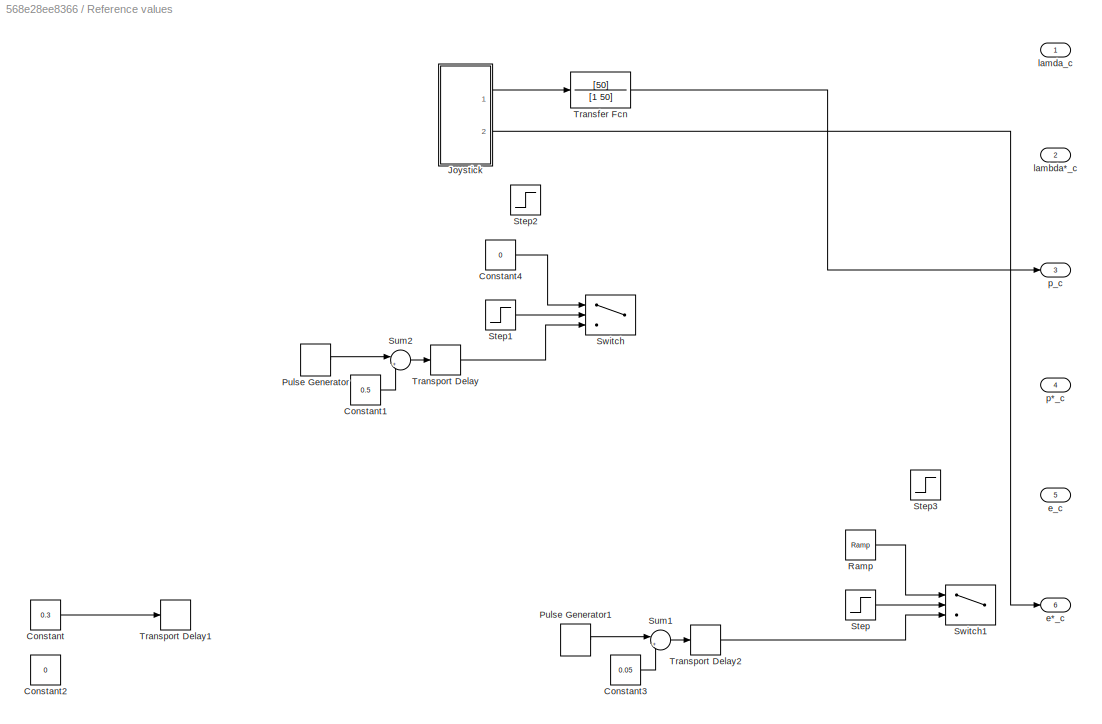
BLOCK [SubSystem] Reference values
  Ports = [0, 6]
  RequestExecContextInheritance = off
  Variant = off
BLOCK [Constant] Reference values/Constant
  Value = 0.3
BLOCK [Constant] Reference values/Constant1
  Value = 0.5
BLOCK [Constant] Reference values/Constant2
  Value = 0
BLOCK [Constant] Reference values/Constant3
  Value = 0.05
BLOCK [Constant] Reference values/Constant4
  Value = 0
BLOCK [SubSystem] Reference values/Joystick
  Ports = [0, 2]
  RequestExecContextInheritance = off
  Variant = off
BLOCK [DeadZone] Reference values/Joystick/Dead Zone: x
  LowerValue = -0.1
  UpperValue = 0.1
BLOCK [DeadZone] Reference values/Joystick/Dead Zone: y
  LowerValue = -0.12
  UpperValue = 0.12
BLOCK [Gain] Reference values/Joystick/Gain: x
  Gain = 10/9
  OutDataTypeStr = Inherit: Inherit via internal rule
  ParamDataTypeStr = Inherit: Inherit via internal rule
  SaturateOnIntegerOverflow = off
BLOCK [Gain] Reference values/Joystick/Gain: y
  Gain = 10/9
  OutDataTypeStr = Inherit: Inherit via internal rule
  ParamDataTypeStr = Inherit: Inherit via internal rule
  SaturateOnIntegerOverflow = off
BLOCK [Reference] Reference values/Joystick/Game Controller  REF=quarc_library/Devices/Peripherals/Target/Game Controller
  Ports = [0, 10]
  SourceBlock = quarc_library/Devices/Peripherals/Target/Game Controller
  SourceType = Game Controller
BLOCK [Gain] Reference values/Joystick/Joystick_gain_x
  Gain = Joystick_gain_x
  OutDataTypeStr = Inherit: Inherit via internal rule
  ParamDataTypeStr = Inherit: Inherit via internal rule
  SaturateOnIntegerOverflow = off
BLOCK [Gain] Reference values/Joystick/Joystick_gain_y
  Gain = Joystick_gain_y
  OutDataTypeStr = Inherit: Inherit via internal rule
  ParamDataTypeStr = Inherit: Inherit via internal rule
  SaturateOnIntegerOverflow = off
BLOCK [RateTransition] Reference values/Joystick/Rate Transition: x
BLOCK [RateTransition] Reference values/Joystick/Rate Transition: y
BLOCK [Terminator] Reference values/Joystick/Terminator
BLOCK [Terminator] Reference values/Joystick/Terminator1
BLOCK [Terminator] Reference values/Joystick/Terminator_1
BLOCK [Terminator] Reference values/Joystick/Terminator_2
BLOCK [Terminator] Reference values/Joystick/Terminator_4
BLOCK [Terminator] Reference values/Joystick/Terminator_5
BLOCK [Terminator] Reference values/Joystick/Terminator_6
BLOCK [Terminator] Reference values/Joystick/Terminator_7
BLOCK [Outport] Reference values/Joystick/X
  IconDisplay = Port number
BLOCK [Scope] Reference values/Joystick/X: Scope
  Ports = [1]
  ScopeSpecificationString = C++SS(StrPVP('Location','[894, 60, 1218, 301]'),StrPVP('Open','off'),StrPVP('ZoomMode','yonly'),MxPVP('AxesTitles',24,'struct(''axes1'',''%<SignalLabel>'')'),MxPVP('ScopeGraphics',28,'struct(''FigureColor'',''[0.5 0.5 0.5]'',''AxesColor'',''[0 0 0]'',''AxesTickColor'',''[1 1 1]'',''LineColors'',''[1 1 0;1 0 1;0 1 1;1 0 0;0 1 0;0 0 1]'',''LineStyles'',''-|-|-|-|-|-'',''LineWidths'',''[0.5 0.5 0.5 0...<+364ch>
BLOCK [Outport] Reference values/Joystick/Y
  IconDisplay = Port number
  Port = 2
BLOCK [Scope] Reference values/Joystick/Y: Scope
  Ports = [1]
  ScopeSpecificationString = Simulink.scopes.TimeScopeBlockCfg('CurrentConfiguration', extmgr.ConfigurationSet(extmgr.Configuration('Core','General UI',true),extmgr.Configuration('Core','Source UI',true),extmgr.Configuration('Sources','WiredSimulink',true,'DataLoggingVariableName','ScopeData5','DataLoggingSaveFormat','StructureWithTime','DataLoggingLimitDataPoints',true,'DataLoggingDecimation','1','DataLoggingDecimateData',tr...<+1789ch>
BLOCK [DiscretePulseGenerator] Reference values/Pulse Generator
  Amplitude = -1
  Period = 30
  Ports = [0, 1]
  PulseType = Time based
  PulseWidth = 50
BLOCK [DiscretePulseGenerator] Reference values/Pulse Generator1
  Amplitude = -0.1
  Period = 6
  Ports = [0, 1]
  PulseType = Time based
  PulseWidth = 50
BLOCK [Reference] Reference values/Ramp  REF=simulink/Sources/Ramp
  Ports = [0, 1]
  SourceBlock = simulink/Sources/Ramp
  SourceType = Ramp
BLOCK [Step] Reference values/Step
  SampleTime = 0
  Time = 30
BLOCK [Step] Reference values/Step1
  SampleTime = 0
  Time = 30
BLOCK [Step] Reference values/Step2
  After = 0.3
  SampleTime = 0
  Time = 5
BLOCK [Step] Reference values/Step3
  After = 0.05
  SampleTime = 0
  Time = 10
BLOCK [Sum] Reference values/Sum1
  IconShape = round
  InputSameDT = off
  Inputs = |++
  OutDataTypeStr = Inherit: Inherit via internal rule
  Ports = [2, 1]
  SaturateOnIntegerOverflow = off
BLOCK [Sum] Reference values/Sum2
  IconShape = round
  InputSameDT = off
  Inputs = |++
  OutDataTypeStr = Inherit: Inherit via internal rule
  Ports = [2, 1]
  SaturateOnIntegerOverflow = off
BLOCK [Switch] Reference values/Switch
  Criteria = u2 > Threshold
  InputSameDT = off
  SaturateOnIntegerOverflow = off
BLOCK [Switch] Reference values/Switch1
  Criteria = u2 > Threshold
  InputSameDT = off
  SaturateOnIntegerOverflow = off
BLOCK [TransferFcn] Reference values/Transfer Fcn
  Denominator = [1 50]
  Numerator = [50]
BLOCK [TransportDelay] Reference values/Transport Delay
  DelayTime = 5
  Ports = [1, 1]
BLOCK [TransportDelay] Reference values/Transport Delay1
  DelayTime = 5
  Ports = [1, 1]
BLOCK [TransportDelay] Reference values/Transport Delay2
  DelayTime = 5
  Ports = [1, 1]
BLOCK [Outport] Reference values/e*_c
  IconDisplay = Port number
  Port = 6
BLOCK [Outport] Reference values/e_c
  IconDisplay = Port number
  Port = 5
BLOCK [Outport] Reference values/lambda*_c
  IconDisplay = Port number
  Port = 2
BLOCK [Outport] Reference values/lamda_c
  IconDisplay = Port number
BLOCK [Outport] Reference values/p*_c
  IconDisplay = Port number
  Port = 4
BLOCK [Outport] Reference values/p_c
  IconDisplay = Port number
  Port = 3
BLOCK [Sum] Sum
  IconShape = round
  InputSameDT = off
  Inputs = ++|
  OutDataTypeStr = Inherit: Inherit via internal rule
  Ports = [2, 1]
  SaturateOnIntegerOverflow = off
BLOCK [Constant] Vs_offset
  Value = Vs_offset
BLOCK [Scope] elevation
  Ports = [1]
  ScopeSpecificationString = Simulink.scopes.TimeScopeBlockCfg('CurrentConfiguration', extmgr.ConfigurationSet(extmgr.Configuration('Core','General UI',true),extmgr.Configuration('Core','Source UI',true),extmgr.Configuration('Sources','WiredSimulink',true,'DataLoggingVariableName','ScopeData3'),extmgr.Configuration('Visuals','Time Domain',true,'SerializedDisplays',{struct('MinYLimReal','-0.51494','MaxYLimReal','-0.31869','YLa...<+1453ch>
BLOCK [Scope] elevation rate
  Ports = [1]
  ScopeSpecificationString = Simulink.scopes.TimeScopeBlockCfg('CurrentConfiguration', extmgr.ConfigurationSet(extmgr.Configuration('Core','General UI',true),extmgr.Configuration('Core','Source UI',true),extmgr.Configuration('Sources','WiredSimulink',true,'DataLoggingVariableName','ScopeData4'),extmgr.Configuration('Visuals','Time Domain',true,'SerializedDisplays',{struct('MinYLimReal','-0.28357','MaxYLimReal','0.29469','YLab...<+1476ch>
BLOCK [Scope] elevation rate1
  Ports = [1]
  ScopeSpecificationString = Simulink.scopes.TimeScopeBlockCfg('CurrentConfiguration', extmgr.ConfigurationSet(extmgr.Configuration('Core','General UI',true),extmgr.Configuration('Core','Source UI',true),extmgr.Configuration('Sources','WiredSimulink',true,'DataLoggingVariableName','ScopeData2'),extmgr.Configuration('Visuals','Time Domain',true,'SerializedDisplays',{struct('MinYLimReal','-0.3569','MaxYLimReal','0.34984','YLabe...<+1483ch>
BLOCK [Scope] pitch
  Ports = [1]
  ScopeSpecificationString = Simulink.scopes.TimeScopeBlockCfg('CurrentConfiguration', extmgr.ConfigurationSet(extmgr.Configuration('Core','General UI',true),extmgr.Configuration('Core','Source UI',true),extmgr.Configuration('Sources','WiredSimulink',true,'DataLoggingVariableName','ScopeData1'),extmgr.Configuration('Visuals','Time Domain',true,'SerializedDisplays',{struct('MinYLimReal','-1.33571','MaxYLimReal','1.2222','YLabe...<+1473ch>
BLOCK [Scope] pitch rate
  Ports = [1]
  ScopeSpecificationString = Simulink.scopes.TimeScopeBlockCfg('CurrentConfiguration', extmgr.ConfigurationSet(extmgr.Configuration('Core','General UI',true),extmgr.Configuration('Core','Source UI',true),extmgr.Configuration('Sources','WiredSimulink',true,'DataLoggingVariableName','ScopeData2'),extmgr.Configuration('Visuals','Time Domain',true,'SerializedDisplays',{struct('MinYLimReal','-0.04738','MaxYLimReal','0.47505','YLab...<+1474ch>
BLOCK [Scope] pitch1
  Ports = [1]
  ScopeSpecificationString = Simulink.scopes.TimeScopeBlockCfg('CurrentConfiguration', extmgr.ConfigurationSet(extmgr.Configuration('Core','General UI',true),extmgr.Configuration('Core','Source UI',true),extmgr.Configuration('Sources','WiredSimulink',true,'DataLoggingVariableName','ScopeData1'),extmgr.Configuration('Visuals','Time Domain',true,'SerializedDisplays',{struct('MinYLimReal','-1.19665','MaxYLimReal','1.12219','YLab...<+1488ch>
BLOCK [Scope] travel
  Ports = [1]
  ScopeSpecificationString = Simulink.scopes.TimeScopeBlockCfg('CurrentConfiguration', extmgr.ConfigurationSet(extmgr.Configuration('Core','General UI',true),extmgr.Configuration('Core','Source UI',true),extmgr.Configuration('Sources','WiredSimulink',true,'DataLoggingVariableName','ScopeData1'),extmgr.Configuration('Visuals','Time Domain',true,'SerializedDisplays',{struct('MinYLimReal','-5.16882','MaxYLimReal','10.50769','YLa...<+1482ch>
BLOCK [Scope] travel rate
  Ports = [1]
  ScopeSpecificationString = Simulink.scopes.TimeScopeBlockCfg('CurrentConfiguration', extmgr.ConfigurationSet(extmgr.Configuration('Core','General UI',true),extmgr.Configuration('Core','Source UI',true),extmgr.Configuration('Sources','WiredSimulink',true,'DataLoggingVariableName','ScopeData5'),extmgr.Configuration('Visuals','Time Domain',true,'SerializedDisplays',{struct('MinYLimReal','-2.17709','MaxYLimReal','2.28732','YLab...<+1477ch>
ANNOTATION Heli 3D: Encoder # 0 - measure Travel angle Encoder # 1 - measure Pitch angle Encoder # 2 - measure Elavation angle
ANNOTATION IMU/IMU: Based on the QUARC Serial Interfacing Read Binary Demo
LINE Constant1:1 -> Manual Switch:2
LINE Controller/Constant1:1 -> Controller/Product1:1
LINE Controller/Constant:1 -> Controller/Product:1
NET Controller/Demux1:1 -> Controller/Mux2:1, Controller/Mux3:2, Controller/Sum2:1
LINE Controller/Demux1:2 -> Controller/Mux2:2
NET Controller/Demux1:3 -> Controller/Mux2:3, Controller/Sum:1, Controller/Transfer Fcn:1
LINE Controller/Integrator1:1 -> Controller/Mux2:5
LINE Controller/Integrator2:1 -> Controller/Elevation:1
LINE Controller/Integrator:1 -> Controller/Mux2:4
LINE Controller/Measured states:1 -> Controller/Demux1:1
LINE Controller/Mux1:1 -> Controller/Product1:2
LINE Controller/Mux2:1 -> Controller/Product:2
LINE Controller/Mux3:1 -> Controller/Pitch:1
NET Controller/Mux4:1 -> Controller/Elevation rate:1, Controller/Integrator2:1
LINE Controller/Product1:1 -> Controller/Sum1:2
LINE Controller/Product:1 -> Controller/Sum1:1
LINE Controller/Sum1:1 -> Controller/u:1
LINE Controller/Sum2:1 -> Controller/Integrator:1
LINE Controller/Sum:1 -> Controller/Integrator1:1
LINE Controller/Transfer Fcn:1 -> Controller/Mux4:2
NET Controller/e*_c:1 -> Controller/Mux1:2, Controller/Mux4:1, Controller/Sum:2
NET Controller/p_c:1 -> Controller/Mux1:1, Controller/Mux3:1, Controller/Sum2:2
NET Controller:1 -> Demux1:1, Kalman filter:3
LINE Conversion/Add:1 -> Conversion/Front gain:1
LINE Conversion/Back gain:1 -> Conversion/Vb [V]:1
LINE Conversion/Front gain:1 -> Conversion/Vf [V]:1
LINE Conversion/Subtract:1 -> Conversion/Back gain:1
NET Conversion/Vd [V]:1 -> Conversion/Add:1, Conversion/Subtract:2
NET Conversion/Vs [V]:1 -> Conversion/Add:2, Conversion/Subtract:1
LINE Conversion:1 -> Heli 3D:1
LINE Conversion:2 -> Heli 3D:2
LINE Demux1:1 -> Sum:2
LINE Demux1:2 -> Mux9:2
LINE Demux2:1 -> Mux1:1
LINE Demux2:2 -> Mux1:3
LINE Demux3:1 -> Mux2:1
LINE Demux3:2 -> Mux3:1
LINE Demux3:3 -> Mux4:1
LINE Demux3:4 -> Mux5:1
LINE Demux3:5 -> Mux6:1
LINE Demux3:6 -> Mux7:1
NET Demux4:1 -> Mux11:1, Mux2:2, Mux8:2
NET Demux4:2 -> Mux11:2, Mux3:2
LINE Demux4:3 -> Mux4:2
NET Demux4:4 -> Mux10:2, Mux11:3, Mux5:2
LINE Demux4:5 -> Mux6:2
LINE Demux4:6 -> Mux7:2
LINE Demux7:1 -> Conversion:2
LINE Demux7:2 -> Conversion:1
LINE Demux:1 -> Mux1:2
LINE Demux:2 -> Mux1:4
LINE Demux:3 -> Mux1:5
NET Heli 3D/Back motor: Saturation:1 -> Heli 3D/HIL Write Analog:2, Heli 3D/Vb:1
LINE Heli 3D/Elevation offset:1 -> Heli 3D/Sum:2
NET Heli 3D/Elevation: Count to rad:1 -> Heli 3D/Elevation [rad]:1, Heli 3D/Elevation: Scope [rad]:1, Heli 3D/Elevation: Transfer Fcn:1
NET Heli 3D/Elevation: Transfer Fcn:1 -> Heli 3D/Elevation rate [rad//s]:1, Heli 3D/Elevation rate: Scope [rad//s]:1
NET Heli 3D/Front motor: Saturation:1 -> Heli 3D/HIL Write Analog:1, Heli 3D/Vf:1
LINE Heli 3D/HIL Read Encoder Timebase:1 -> Heli 3D/Travel: Count to rad:1
LINE Heli 3D/HIL Read Encoder Timebase:2 -> Heli 3D/Pitch: Count to rad:1
LINE Heli 3D/HIL Read Encoder Timebase:3 -> Heli 3D/Sum:1
NET Heli 3D/Pitch: Count to rad:1 -> Heli 3D/Pitch [rad]:1, Heli 3D/Pitch: Scope [rad]:1, Heli 3D/Pitch: Transfer Fcn:1
NET Heli 3D/Pitch: Transfer Fcn:1 -> Heli 3D/Pitch rate [rad//s]:1, Heli 3D/Pitch rate: Scope [rad//s]:1
LINE Heli 3D/Sum:1 -> Heli 3D/Elevation: Count to rad:1
NET Heli 3D/Travel: Count to rad:1 -> Heli 3D/Travel [rad]:1, Heli 3D/Travel: Scope [rad]:1, Heli 3D/Travel: Transfer Fcn:1
NET Heli 3D/Travel: Transfer Fcn:1 -> Heli 3D/Travel rate [rad//s]:1, Heli 3D/Travel rate: Scope [rad//s]:1
LINE Heli 3D/Vb [V]:1 -> Heli 3D/Back motor: Saturation:1
LINE Heli 3D/Vf [V]:1 -> Heli 3D/Front motor: Saturation:1
LINE Heli 3D:1 -> Mux:5
LINE Heli 3D:2 -> Mux:6
LINE Heli 3D:3 -> Mux:1
LINE Heli 3D:4 -> Mux:2
LINE Heli 3D:5 -> Mux:3
LINE Heli 3D:6 -> Mux:4
LINE IMU/IMU/Constant1:1 -> IMU/IMU/Stream Formatted Write:2
LINE IMU/IMU/Constant:1 -> IMU/IMU/Stream Call1:1
LINE IMU/IMU/Data Type Conversion:1 -> IMU/IMU/Switch:1
LINE IMU/IMU/Demux:1 -> IMU/IMU/Mux:1
LINE IMU/IMU/Demux:10 -> IMU/IMU/temperature, deg C:1
LINE IMU/IMU/Demux:2 -> IMU/IMU/Mux:2
LINE IMU/IMU/Demux:3 -> IMU/IMU/Mux:3
LINE IMU/IMU/Demux:4 -> IMU/IMU/Mux1:1
LINE IMU/IMU/Demux:5 -> IMU/IMU/Mux1:2
LINE IMU/IMU/Demux:6 -> IMU/IMU/Mux1:3
LINE IMU/IMU/Demux:7 -> IMU/IMU/Mux2:1
LINE IMU/IMU/Demux:8 -> IMU/IMU/Mux2:2
LINE IMU/IMU/Demux:9 -> IMU/IMU/Mux2:3
LINE IMU/IMU/Gain1:1 -> IMU/IMU/gyroscope, rad//s:1
LINE IMU/IMU/Gain2:1 -> IMU/IMU/accelerometer, m//s^2:1
LINE IMU/IMU/Memory:1 -> IMU/IMU/Switch:3
LINE IMU/IMU/Mux1:1 -> IMU/IMU/Gain1:1
LINE IMU/IMU/Mux2:1 -> IMU/IMU/magnetometer, uT:1
LINE IMU/IMU/Mux:1 -> IMU/IMU/Gain2:1
LINE IMU/IMU/Stream Call1:1 -> IMU/IMU/Stream Formatted Write:1
LINE IMU/IMU/Stream Call1:2 -> IMU/IMU/Connected:1
LINE IMU/IMU/Stream Call1:3 -> IMU/IMU/Stop with Call Error:1
LINE IMU/IMU/Stream Formatted Write:1 -> IMU/IMU/Stream Read1:1
LINE IMU/IMU/Stream Read1:1 -> IMU/IMU/Terminator:1
LINE IMU/IMU/Stream Read1:2 -> IMU/IMU/Data Type Conversion:1
NET IMU/IMU/Stream Read1:3 -> IMU/IMU/New data, 0//1:1, IMU/IMU/Switch:2
LINE IMU/IMU/Stream Read1:4 -> IMU/IMU/Terminator1:1
LINE IMU/IMU/Stream Read1:5 -> IMU/IMU/Stop with Read Error:1
LINE IMU/IMU/String Constant:1 -> IMU/IMU/Stream Call1:2
NET IMU/IMU/Switch:1 -> IMU/IMU/Demux:1, IMU/IMU/Memory:1
LINE IMU/IMU:1 -> IMU/Accelerometer, m//s^2:1
LINE IMU/IMU:2 -> IMU/gyro_vec :1
LINE IMU/IMU:3 -> IMU/Magnetometer, uT:1
LINE IMU/IMU:4 -> IMU/Temperature, deg C:1
LINE IMU/IMU:5 -> IMU/New data, 0//1:1
LINE IMU:1 -> Measurement transformations:1
LINE IMU:4 -> Manual Switch:1
LINE IMU:5 -> Measurement transformations:2
LINE Kalman filter/Access diagonal elements:1 -> Kalman filter/Demux:1
LINE Kalman filter/Constant1:1 -> Kalman filter/Update prediction variance:3
LINE Kalman filter/Constant2:1 -> Kalman filter/Update estimate variance:4
LINE Kalman filter/Constant3:1 -> Kalman filter/Update weighting:2
LINE Kalman filter/Constant4:1 -> Kalman filter/Update weighting:3
LINE Kalman filter/Constant5:1 -> Kalman filter/Correction step:5
LINE Kalman filter/Constant6:1 -> Kalman filter/Prediction step:3
LINE Kalman filter/Constant7:1 -> Kalman filter/Prediction step:4
LINE Kalman filter/Constant8:1 -> Kalman filter/Update estimate variance:5
LINE Kalman filter/Constant:1 -> Kalman filter/Update prediction variance:2
NET Kalman filter/Correction step:1 -> Kalman filter/Prediction step:1, Kalman filter/x^[k]:1
LINE Kalman filter/Demux:1 -> Kalman filter/P^_11 P^_22:1
LINE Kalman filter/Demux:2 -> Kalman filter/P^_33 P^_44:1
LINE Kalman filter/Demux:3 -> Kalman filter/P^_55 P^_66:1
LINE Kalman filter/Prediction step:1 -> Kalman filter/Unit Delay:1
NET Kalman filter/Unit Delay1:1 -> Kalman filter/Update estimate variance:1, Kalman filter/Update weighting:1
LINE Kalman filter/Unit Delay:1 -> Kalman filter/Correction step:1
NET Kalman filter/Update estimate variance:1 -> Kalman filter/Access diagonal elements:1, Kalman filter/Update prediction variance:1
LINE Kalman filter/Update prediction variance:1 -> Kalman filter/Unit Delay1:1
NET Kalman filter/Update weighting:1 -> Kalman filter/Correction step:2, Kalman filter/Update estimate variance:2
NET Kalman filter/new_data:1 -> Kalman filter/Correction step:4, Kalman filter/Update estimate variance:3
LINE Kalman filter/u[k]:1 -> Kalman filter/Prediction step:2
LINE Kalman filter/y[k]:1 -> Kalman filter/Correction step:3
LINE Kalman filter:1 -> Demux4:1
LINE Manual Switch:1 -> Kalman filter:2
NET Measurement transformations/Accelerometer values to euler angles corrected:1 -> Measurement transformations/Demux1:1, Measurement transformations/Demux:1, Measurement transformations/Gyro vector to [pitch rate, elevation rate, travle rate]:2
LINE Measurement transformations/Constant1:1 -> Measurement transformations/Sum1:2
LINE Measurement transformations/Constant2:1 -> Measurement transformations/Sum2:2
LINE Measurement transformations/Constant:1 -> Measurement transformations/Sum:2
LINE Measurement transformations/Data Store Read:1 -> Measurement transformations/Accelerometer values to euler angles corrected:2
LINE Measurement transformations/Demux1:2 -> Measurement transformations/Memory2:1
LINE Measurement transformations/Demux2:3 -> Measurement transformations/Data Store Write:1
LINE Measurement transformations/Demux3:1 -> Measurement transformations/Mux1:1
LINE Measurement transformations/Demux3:2 -> Measurement transformations/Sum2:1
LINE Measurement transformations/Demux3:3 -> Measurement transformations/Mux1:3
LINE Measurement transformations/Demux:1 -> Measurement transformations/Sum1:1
LINE Measurement transformations/Demux:2 -> Measurement transformations/Sum:1
LINE Measurement transformations/Demux:3 -> Measurement transformations/Mux:3
NET Measurement transformations/Gyro vector to [pitch rate, elevation rate, travle rate]:1 -> Measurement transformations/Demux2:1, Measurement transformations/Demux3:1
LINE Measurement transformations/Memory2:1 -> Measurement transformations/Accelerometer values to euler angles corrected:3
LINE Measurement transformations/Mux1:1 -> Measurement transformations/transformed_rates:1
LINE Measurement transformations/Mux:1 -> Measurement transformations/transformed_angles:1
LINE Measurement transformations/Sum1:1 -> Measurement transformations/Mux:1
LINE Measurement transformations/Sum2:1 -> Measurement transformations/Mux1:2
LINE Measurement transformations/Sum:1 -> Measurement transformations/Mux:2
LINE Measurement transformations/accelerometer:1 -> Measurement transformations/Accelerometer values to euler angles corrected:1
LINE Measurement transformations/gyro_vec:1 -> Measurement transformations/Gyro vector to [pitch rate, elevation rate, travle rate]:1
LINE Measurement transformations:1 -> Demux2:1
LINE Measurement transformations:2 -> Demux:1
LINE Mux10:1 -> elevation rate1:1
LINE Mux11:1 -> Controller:3
LINE Mux1:1 -> Kalman filter:1
LINE Mux2:1 -> pitch:1
LINE Mux3:1 -> pitch rate:1
LINE Mux4:1 -> elevation:1
LINE Mux5:1 -> elevation rate:1
LINE Mux6:1 -> travel:1
LINE Mux7:1 -> travel rate:1
LINE Mux8:1 -> pitch1:1
LINE Mux9:1 -> Demux7:1
LINE Mux:1 -> Demux3:1
LINE Reference values/Constant1:1 -> Reference values/Sum2:2
LINE Reference values/Constant3:1 -> Reference values/Sum1:2
LINE Reference values/Constant4:1 -> Reference values/Switch:1
LINE Reference values/Constant:1 -> Reference values/Transport Delay1:1
LINE Reference values/Joystick/Dead Zone: x:1 -> Reference values/Joystick/Gain: x:1
LINE Reference values/Joystick/Dead Zone: y:1 -> Reference values/Joystick/Gain: y:1
LINE Reference values/Joystick/Gain: x:1 -> Reference values/Joystick/Joystick_gain_x:1
LINE Reference values/Joystick/Gain: y:1 -> Reference values/Joystick/Joystick_gain_y:1
LINE Reference values/Joystick/Game Controller:1 -> Reference values/Joystick/Terminator_1:1
LINE Reference values/Joystick/Game Controller:10 -> Reference values/Joystick/Terminator_7:1
LINE Reference values/Joystick/Game Controller:2 -> Reference values/Joystick/Terminator_2:1
LINE Reference values/Joystick/Game Controller:3 -> Reference values/Joystick/Terminator1:1
LINE Reference values/Joystick/Game Controller:4 -> Reference values/Joystick/Rate Transition: x:1
LINE Reference values/Joystick/Game Controller:5 -> Reference values/Joystick/Rate Transition: y:1
LINE Reference values/Joystick/Game Controller:6 -> Reference values/Joystick/Terminator:1
LINE Reference values/Joystick/Game Controller:7 -> Reference values/Joystick/Terminator_4:1
LINE Reference values/Joystick/Game Controller:8 -> Reference values/Joystick/Terminator_5:1
LINE Reference values/Joystick/Game Controller:9 -> Reference values/Joystick/Terminator_6:1
NET Reference values/Joystick/Joystick_gain_x:1 -> Reference values/Joystick/X: Scope:1, Reference values/Joystick/X:1
NET Reference values/Joystick/Joystick_gain_y:1 -> Reference values/Joystick/Y: Scope:1, Reference values/Joystick/Y:1
LINE Reference values/Joystick/Rate Transition: x:1 -> Reference values/Joystick/Dead Zone: x:1
LINE Reference values/Joystick/Rate Transition: y:1 -> Reference values/Joystick/Dead Zone: y:1
LINE Reference values/Joystick:1 -> Reference values/Transfer Fcn:1
LINE Reference values/Joystick:2 -> Reference values/e*_c:1
LINE Reference values/Pulse Generator1:1 -> Reference values/Sum1:1
LINE Reference values/Pulse Generator:1 -> Reference values/Sum2:1
LINE Reference values/Ramp:1 -> Reference values/Switch1:1
LINE Reference values/Step1:1 -> Reference values/Switch:2
LINE Reference values/Step:1 -> Reference values/Switch1:2
LINE Reference values/Sum1:1 -> Reference values/Transport Delay2:1
LINE Reference values/Sum2:1 -> Reference values/Transport Delay:1
LINE Reference values/Transfer Fcn:1 -> Reference values/p_c:1
LINE Reference values/Transport Delay2:1 -> Reference values/Switch1:3
LINE Reference values/Transport Delay:1 -> Reference values/Switch:3
NET Reference values:3 -> Controller:1, Mux8:1
NET Reference values:6 -> Controller:2, Mux10:1
LINE Sum:1 -> Mux9:1
LINE Vs_offset:1 -> Sum:1
note: NET lines group one-source signal fan-out (src -> all destinations, sorted); 1:1 wires keep LINE
CHART Kalman filter/Correction step states=1 transitions=1
  STATE_LABEL 'eML_blk_kernel()'
  STATE_LABEL 'SCRIPT:\nfunction x_est_k = fcn(x_pred_k, K_k, y_k, new_data, C_d)\n    x_est_k = zeros(6,1);\n    if ~new_data\n        x_est_k = x_pred_k;\n    else\n        x_est_k = x_pred_k + K_k*(y_k - C_d*x_pred_k);\n    end\n'
CHART Measurement transformations/Gyro vector to [pitch rate, elevation rate, travle rate] states=1 transitions=1
  STATE_LABEL 'eML_blk_kernel()'
  STATE_LABEL 'SCRIPT:\nfunction euler_rates  = gyro_vec_to_euler_rates(gyro_vec,euler_angles)\n%#codegen\n    phi = euler_angles(1);\n    theta = euler_angles(2);\n    %psi = euler_angles(3);\n\n\n    T = [1, sin(phi)*tan(theta), cos(phi)*tan(theta);\n         0, cos(phi),            -sin(phi);\n         0, sin(phi)/cos(theta), cos(phi)/cos(theta)]; \neuler_rates = T*gyro_vec;'
CHART Measurement transformations/Accelerometer values to euler angles corrected states=1 transitions=1
  STATE_LABEL 'eML_blk_kernel()'
  STATE_LABEL 'SCRIPT:\nfunction euler_angles  = euler_angles_from_accelerometer(accelerometer, l_dot, e)\n%#codegen\n    x = accelerometer(1);\n    y = accelerometer(2);\n    z = accelerometer(3);\n    \n    l_h = 0.66;\n    a_c = l_dot.^2*l_h;\n    \n    if (z == 0)\n        x_out = 0;\n    else\n        x_out = atan(y/z);\n    end\n    \n    if ((y.^2 + (z+a_c*sin(e)) == 0))\n        y_out = 0;\n    else\n        % y_out = atan...<+163ch>'
CHART Kalman filter/Prediction step states=1 transitions=1
  STATE_LABEL 'eML_blk_kernel()'
  STATE_LABEL 'SCRIPT:\nfunction x_pred_k_plus_1 = fcn(x_est_k, u_k, A_d, B_d)\nx_pred_k_plus_1 = zeros(6, 1);\nx_pred_k_plus_1 = A_d*x_est_k+B_d*u_k;'
CHART Kalman filter/Update estimate variance states=1 transitions=1
  STATE_LABEL 'eML_blk_kernel()'
  STATE_LABEL "SCRIPT:\nfunction P_est_k = fcn(P_pred_k, K_k, new_data, C_d, R_d)\nP_est_k = zeros(6,6);\nif ~new_data\n    P_est_k = P_pred_k;\nelse\n    temp = (eye(size(K_k,1)) - K_k*C_d);\n    P_est_k = temp*P_pred_k*temp' + K_k*R_d*K_k';\nend"
CHART Kalman filter/Update prediction variance states=1 transitions=1
  STATE_LABEL 'eML_blk_kernel()'
  STATE_LABEL "SCRIPT:\nfunction P_pred_k_plus_1 = fcn(P_est_k, A_d, Q_d)\nP_pred_k_plus_1 = zeros(6,6);\nP_pred_k_plus_1 = A_d*P_est_k*A_d' + Q_d;"
CHART Kalman filter/Update weighting states=1 transitions=1
  STATE_LABEL 'eML_blk_kernel()'
  STATE_LABEL "SCRIPT:\nfunction K_k = fcn(P_pred_k, C_d, R_d)\nK_k = P_pred_k*C_d'*(C_d*P_pred_k*C_d' + R_d)^(-1);\n"
CHART Kalman filter/Access diagonal elements states=1 transitions=1
  STATE_LABEL 'eML_blk_kernel()'
  STATE_LABEL 'SCRIPT:\nfunction P_est_k_diag = fcn(P_est_k)\nP_est_k_diag = zeros(1,6);\nP_est_k_diag = [P_est_k(1,1) P_est_k(2,2) P_est_k(3,3) P_est_k(4,4) P_est_k(5,5) P_est_k(6,6)];'
